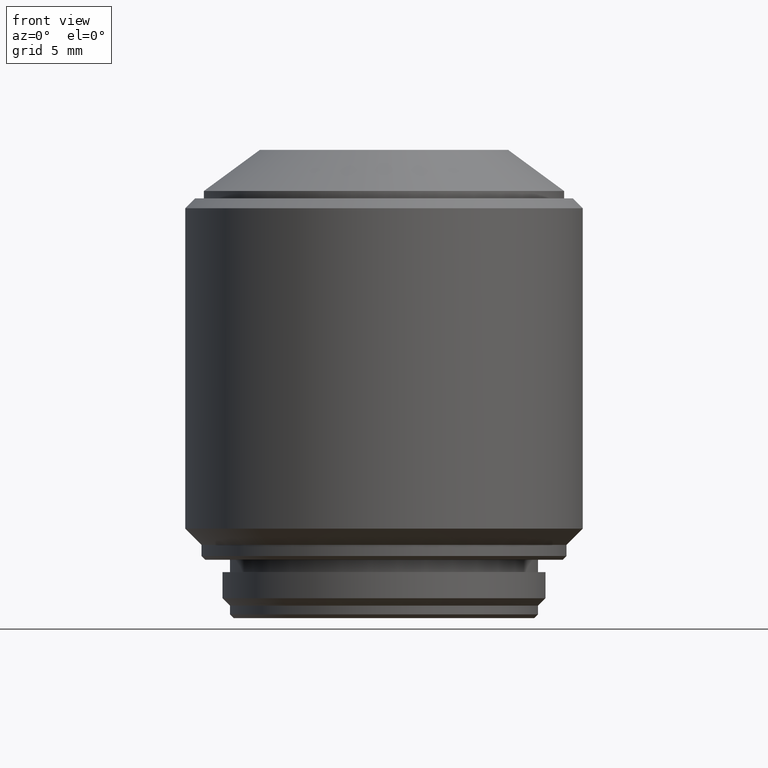
[diagram: clean part render]
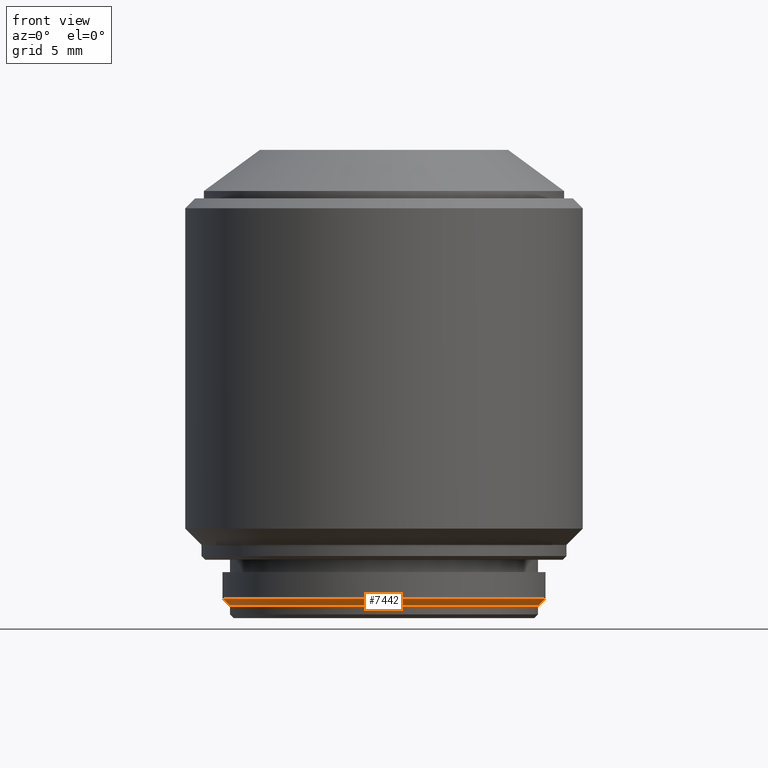
[diagram: same view with one face highlighted and labeled with its STEP entity id]
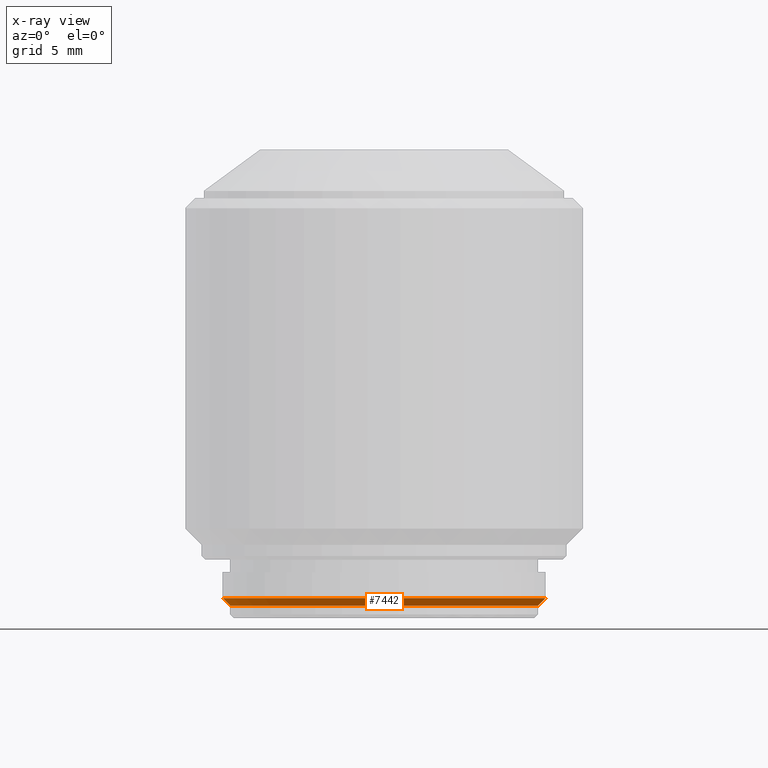
[diagram: x-ray of the same camera — body ghosted, the highlighted face saturated]
A machine part, front view. The second image highlights one B-rep face of the part: STEP entity #7442.
The next image is the same camera in x-ray: the body ghosted, the highlighted face saturated — about 0% of this face is hidden behind the body in this view.
In plain terms, the highlighted conical surface has half-angle 45 deg.
Its self-contained STEP definition (entity closure, byte-faithful):
#37 = CARTESIAN_POINT ( 'NONE',  ( 0.000000000000000000, 0.000000000000000000, 1.600000000000000089 ) ) ;
#561 = ORIENTED_EDGE ( 'NONE', *, *, #13348, .F. ) ;
#802 = ORIENTED_EDGE ( 'NONE', *, *, #3310, .T. ) ;
#1300 = LINE ( 'NONE', #8366, #12343 ) ;
#1548 = DIRECTION ( 'NONE',  ( 1.000000000000000000, 0.000000000000000000, 0.000000000000000000 ) ) ;
#2031 = CIRCLE ( 'NONE', #20132, 12.40000000000000036 ) ;
#2539 = CIRCLE ( 'NONE', #25388, 13.00000000000000000 ) ;
#3259 = CONICAL_SURFACE ( 'NONE', #23921, 13.00000000000000000, 0.7853981633974476129 ) ;
#3310 = EDGE_CURVE ( 'NONE', #12513, #5434, #14514, .T. ) ;
#3562 = DIRECTION ( 'NONE',  ( 0.000000000000000000, 0.000000000000000000, 1.000000000000000000 ) ) ;
#5434 = VERTEX_POINT ( 'NONE', #12702 ) ;
#7442 = ADVANCED_FACE ( 'NONE', ( #14077 ), #3259, .T. ) ;
#7617 = CARTESIAN_POINT ( 'NONE',  ( 0.000000000000000000, 0.000000000000000000, 1.000000000000000000 ) ) ;
#8366 = CARTESIAN_POINT ( 'NONE',  ( -13.00000000000000000, 1.592040838891559095E-15, 1.600000000000000089 ) ) ;
#8437 = DIRECTION ( 'NONE',  ( 0.7071067811865470176, 0.000000000000000000, 0.7071067811865480168 ) ) ;
#10168 = DIRECTION ( 'NONE',  ( -1.000000000000000000, 0.000000000000000000, 0.000000000000000000 ) ) ;
#10303 = VERTEX_POINT ( 'NONE', #17518 ) ;
#12165 = EDGE_CURVE ( 'NONE', #22335, #10303, #1300, .T. ) ;
#12174 = CARTESIAN_POINT ( 'NONE',  ( 0.000000000000000000, 0.000000000000000000, 1.600000000000000089 ) ) ;
#12343 = VECTOR ( 'NONE', #22060, 1000.000000000000000 ) ;
#12513 = VERTEX_POINT ( 'NONE', #20241 ) ;
#12702 = CARTESIAN_POINT ( 'NONE',  ( 13.00000000000000000, 0.000000000000000000, 1.600000000000000089 ) ) ;
#13348 = EDGE_CURVE ( 'NONE', #12513, #22335, #2031, .T. ) ;
#14077 = FACE_OUTER_BOUND ( 'NONE', #25986, .T. ) ;
#14514 = LINE ( 'NONE', #22741, #26472 ) ;
#15868 = DIRECTION ( 'NONE',  ( 0.000000000000000000, 0.000000000000000000, -1.000000000000000000 ) ) ;
#16589 = CARTESIAN_POINT ( 'NONE',  ( -12.40000000000000036, 1.555301434917138433E-15, 1.000000000000000000 ) ) ;
#17518 = CARTESIAN_POINT ( 'NONE',  ( -13.00000000000000000, 1.592040838891559095E-15, 1.600000000000000089 ) ) ;
#19636 = EDGE_CURVE ( 'NONE', #10303, #5434, #2539, .T. ) ;
#20132 = AXIS2_PLACEMENT_3D ( 'NONE', #7617, #15868, #10168 ) ;
#20241 = CARTESIAN_POINT ( 'NONE',  ( 12.40000000000000036, 0.000000000000000000, 1.000000000000000000 ) ) ;
#20499 = ORIENTED_EDGE ( 'NONE', *, *, #12165, .F. ) ;
#22060 = DIRECTION ( 'NONE',  ( -0.7071067811865470176, 8.659560562354926695E-17, 0.7071067811865480168 ) ) ;
#22335 = VERTEX_POINT ( 'NONE', #16589 ) ;
#22741 = CARTESIAN_POINT ( 'NONE',  ( 13.00000000000000000, 0.000000000000000000, 1.600000000000000089 ) ) ;
#22953 = DIRECTION ( 'NONE',  ( -1.000000000000000000, 0.000000000000000000, 0.000000000000000000 ) ) ;
#23921 = AXIS2_PLACEMENT_3D ( 'NONE', #12174, #3562, #1548 ) ;
#24701 = DIRECTION ( 'NONE',  ( 0.000000000000000000, 0.000000000000000000, 1.000000000000000000 ) ) ;
#25388 = AXIS2_PLACEMENT_3D ( 'NONE', #37, #24701, #22953 ) ;
#25986 = EDGE_LOOP ( 'NONE', ( #20499, #561, #802, #26647 ) ) ;
#26472 = VECTOR ( 'NONE', #8437, 1000.000000000000000 ) ;
#26647 = ORIENTED_EDGE ( 'NONE', *, *, #19636, .F. ) ;